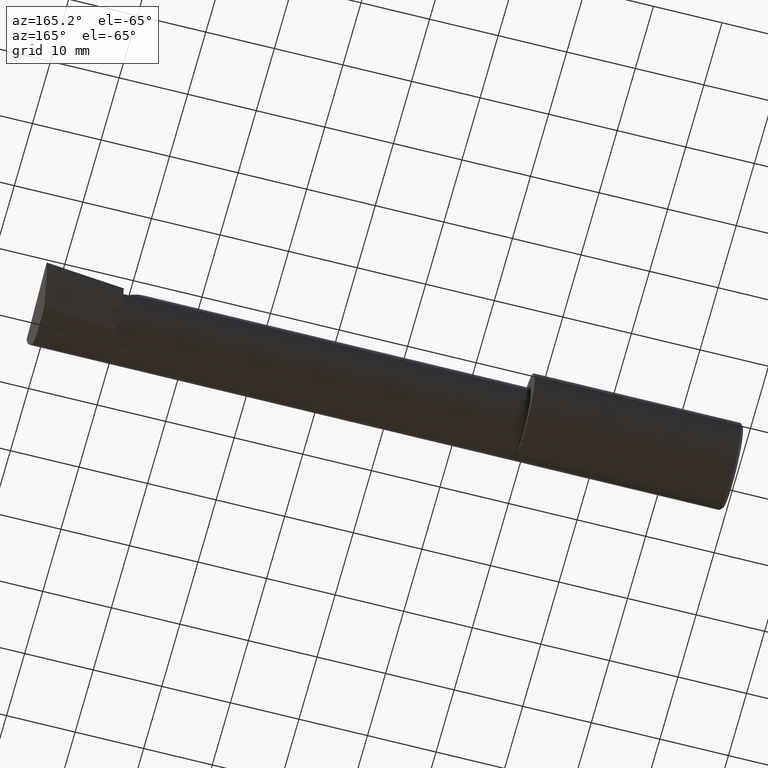
[diagram: clean part render]
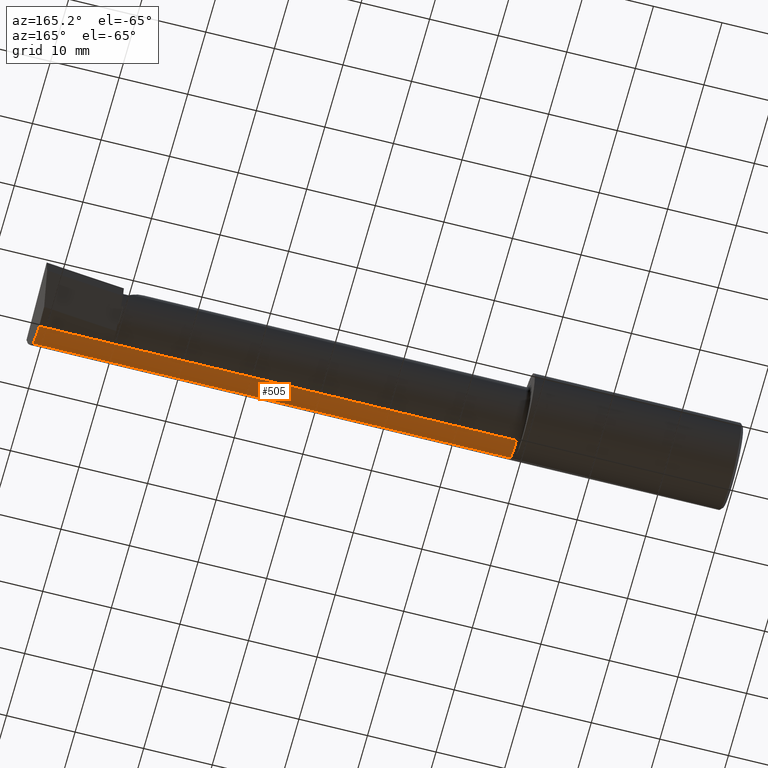
[diagram: same view with one face highlighted and labeled with its STEP entity id]
A machine part, auxiliary view. The second image highlights one B-rep face of the part: STEP entity #505.
In plain terms, the highlighted cylindrical surface (partial cylindrical patch) has radius 5.414 mm, axis along (-1, -0, -0).
Its self-contained STEP definition (entity closure, byte-faithful):
#39 = VECTOR ( 'NONE', #379, 39.37007874015748143 ) ;
#41 = VERTEX_POINT ( 'NONE', #181 ) ;
#49 = CARTESIAN_POINT ( 'NONE',  ( 3.966195468375009359, -0.05299999999999998462, -0.2131499999999999229 ) ) ;
#72 = DIRECTION ( 'NONE',  ( -1.000000000000000000, 5.691349986800549142E-18, -0.0000000000000000000 ) ) ;
#95 = EDGE_LOOP ( 'NONE', ( #718, #546, #406, #563, #249 ) ) ;
#124 = CYLINDRICAL_SURFACE ( 'NONE', #691, 0.2131499999999999506 ) ;
#181 = CARTESIAN_POINT ( 'NONE',  ( 3.968492717492762889, -0.1868028301886794917, -0.1659208399614086338 ) ) ;
#184 = DIRECTION ( 'NONE',  ( -1.000000000000000000, -0.0000000000000000000, -0.0000000000000000000 ) ) ;
#197 = CIRCLE ( 'NONE', #629, 0.2131499999999997563 ) ;
#216 = CARTESIAN_POINT ( 'NONE',  ( 3.544999999999999929, -0.05299999999999998462, -0.2131499999999999229 ) ) ;
#237 = CARTESIAN_POINT ( 'NONE',  ( 3.966195468375009359, -0.05299999999999998462, -0.2131499999999999229 ) ) ;
#249 = ORIENTED_EDGE ( 'NONE', *, *, #302, .F. ) ;
#280 = CARTESIAN_POINT ( 'NONE',  ( 1.225000000000000311, -0.1868028301886804077, -0.1659208399614076346 ) ) ;
#293 = VERTEX_POINT ( 'NONE', #49 ) ;
#299 = EDGE_CURVE ( 'NONE', #394, #516, #702, .T. ) ;
#301 = DIRECTION ( 'NONE',  ( 0.0000000000000000000, 0.0000000000000000000, 1.000000000000000000 ) ) ;
#302 = EDGE_CURVE ( 'NONE', #516, #422, #197, .T. ) ;
#336 = EDGE_CURVE ( 'NONE', #41, #293, #709, .T. ) ;
#361 = CARTESIAN_POINT ( 'NONE',  ( 1.225000000000000311, -0.05299999999999998462, 0.0000000000000000000 ) ) ;
#379 = DIRECTION ( 'NONE',  ( -1.000000000000000000, -0.0000000000000000000, -0.0000000000000000000 ) ) ;
#383 = EDGE_CURVE ( 'NONE', #41, #422, #765, .T. ) ;
#394 = VERTEX_POINT ( 'NONE', #216 ) ;
#397 = LINE ( 'NONE', #483, #708 ) ;
#406 = ORIENTED_EDGE ( 'NONE', *, *, #336, .F. ) ;
#410 = CARTESIAN_POINT ( 'NONE',  ( 3.968492717492762889, -0.1868028301886794917, -0.1659208399614086338 ) ) ;
#422 = VERTEX_POINT ( 'NONE', #280 ) ;
#483 = CARTESIAN_POINT ( 'NONE',  ( 4.000000000000000000, -0.05299999999999998462, -0.2131499999999999229 ) ) ;
#486 = CARTESIAN_POINT ( 'NONE',  ( 0.0000000000000000000, -0.05299999999999998462, 0.0000000000000000000 ) ) ;
#491 = DIRECTION ( 'NONE',  ( -1.000000000000000000, -0.0000000000000000000, -0.0000000000000000000 ) ) ;
#505 = ADVANCED_FACE ( 'NONE', ( #742 ), #124, .T. ) ;
#511 = VECTOR ( 'NONE', #532, 39.37007874015748143 ) ;
#516 = VERTEX_POINT ( 'NONE', #536 ) ;
#532 = DIRECTION ( 'NONE',  ( -1.000000000000000000, -0.0000000000000000000, -0.0000000000000000000 ) ) ;
#536 = CARTESIAN_POINT ( 'NONE',  ( 1.225000000000000311, -0.05299999999999996381, -0.2131499999999997563 ) ) ;
#546 = ORIENTED_EDGE ( 'NONE', *, *, #576, .F. ) ;
#547 = DIRECTION ( 'NONE',  ( 0.0000000000000000000, 0.0000000000000000000, 1.000000000000000000 ) ) ;
#563 = ORIENTED_EDGE ( 'NONE', *, *, #383, .T. ) ;
#576 = EDGE_CURVE ( 'NONE', #293, #394, #397, .T. ) ;
#586 = CARTESIAN_POINT ( 'NONE',  ( 3.964907988924523785, -0.1021668565906570375, -0.2131500000000000061 ) ) ;
#629 = AXIS2_PLACEMENT_3D ( 'NONE', #361, #184, #301 ) ;
#636 = CARTESIAN_POINT ( 'NONE',  ( 2.385000000000000231, -0.1868028301886794917, -0.1659208399614086338 ) ) ;
#691 = AXIS2_PLACEMENT_3D ( 'NONE', #486, #491, #547 ) ;
#702 = LINE ( 'NONE', #753, #511 ) ;
#708 = VECTOR ( 'NONE', #72, 39.37007874015748143 ) ;
#709 =( BOUNDED_CURVE ( )  B_SPLINE_CURVE ( 3, ( #410, #764, #586, #237 ),
 .UNSPECIFIED., .F., .T. ) 
 B_SPLINE_CURVE_WITH_KNOTS ( ( 4, 4 ),
 ( 5.814587959757482771, 6.493234751459722176 ),
 .UNSPECIFIED. ) 
 CURVE ( )  GEOMETRIC_REPRESENTATION_ITEM ( )  RATIONAL_B_SPLINE_CURVE ( ( 1.000000000000000000, 0.9619867256453022986, 0.9619867256453022986, 1.000000000000000000 ) ) 
 REPRESENTATION_ITEM ( '' )  );
#718 = ORIENTED_EDGE ( 'NONE', *, *, #299, .F. ) ;
#742 = FACE_OUTER_BOUND ( 'NONE', #95, .T. ) ;
#753 = CARTESIAN_POINT ( 'NONE',  ( 0.0000000000000000000, -0.05299999999999996381, -0.2131499999999999506 ) ) ;
#764 = CARTESIAN_POINT ( 'NONE',  ( 3.965703997523711610, -0.1485302233682060380, -0.1967848538638757028 ) ) ;
#765 = LINE ( 'NONE', #636, #39 ) ;